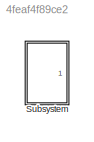
MODEL slx_4feaf4f89ce2
KIND model
CONFIG AbsTol = auto
CONFIG EnableMultiTasking = off
CONFIG FixedStep = auto
CONFIG MaxStep = auto
CONFIG MinStep = auto
CONFIG RelTol = 1e-3
CONFIG SampleTimeConstraint = Unconstrained
CONFIG Solver = VariableStepAuto
CONFIG SolverName = VariableStepAuto
CONFIG StartTime = 0.0
CONFIG StopTime = 50.0
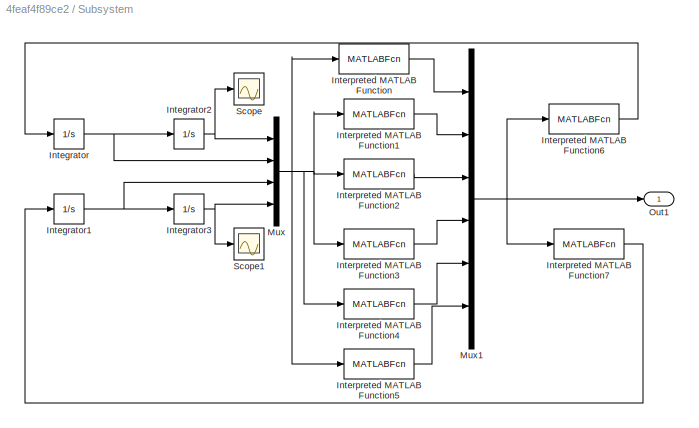
BLOCK [SubSystem] Subsystem
  Ports = [0, 1]
  RequestExecContextInheritance = off
BLOCK [Integrator] Subsystem/Integrator
  InitialCondition = vr
  Ports = [1, 1]
BLOCK [Integrator] Subsystem/Integrator1
  InitialCondition = vth
  Ports = [1, 1]
BLOCK [Integrator] Subsystem/Integrator2
  InitialCondition = r
  Ports = [1, 1]
BLOCK [Integrator] Subsystem/Integrator3
  InitialCondition = th*(pi/180)
  Ports = [1, 1]
BLOCK [MATLABFcn] Subsystem/Interpreted MATLAB Function
  MATLABFcn = (m1+m2+(M/2))*u(1)
  OutputDimensions = 1
  Ports = [1, 1]
BLOCK [MATLABFcn] Subsystem/Interpreted MATLAB Function1
  MATLABFcn = -(m1+m2+(M/2))*Rd
  OutputDimensions = 1
  Ports = [1, 1]
BLOCK [MATLABFcn] Subsystem/Interpreted MATLAB Function2
  MATLABFcn = (m1*u(1))+(g*(m1*cos(u(4))-m2))
  OutputDimensions = 1
  Ports = [1, 1]
BLOCK [MATLABFcn] Subsystem/Interpreted MATLAB Function3
  MATLABFcn = -(m1+m2+(M/2))*Rd
  OutputDimensions = 1
  Ports = [1, 1]
BLOCK [MATLABFcn] Subsystem/Interpreted MATLAB Function4
  MATLABFcn = (((m1+m2+(M/2))*Rd^2)+(m1*u(1)^2))
  OutputDimensions = 1
  Ports = [1, 1]
BLOCK [MATLABFcn] Subsystem/Interpreted MATLAB Function5
  MATLABFcn = (g*Rd*(m2-(m1*cos(u(4)))) - (m1*r*((2*u(1)*th)+(g*sin(u(4))))))
  OutputDimensions = 1
  Ports = [1, 1]
BLOCK [MATLABFcn] Subsystem/Interpreted MATLAB Function6
  MATLABFcn = ((u(3)*u(5))-(u(2)*u(6)))/((u(1)*u(5))-(u(2)*u(4)))
  OutputDimensions = 1
  Ports = [1, 1]
BLOCK [MATLABFcn] Subsystem/Interpreted MATLAB Function7
  MATLABFcn = ((u(1)*u(6))-(u(3)*u(4)))/((u(1)*u(5))-(u(2)*u(4)))
  OutputDimensions = 1
  Ports = [1, 1]
BLOCK [Mux] Subsystem/Mux
  DisplayOption = bar
  Ports = [4, 1]
BLOCK [Mux] Subsystem/Mux1
  DisplayOption = bar
  Inputs = 6
  Ports = [6, 1]
BLOCK [Outport] Subsystem/Out1
  IconDisplay = Port number
BLOCK [Scope] Subsystem/Scope
  Floating = off
  NumInputPorts = 1
  Ports = [1]
  ScopeSpecificationString = Simulink.scopes.TimeScopeBlockCfg('CurrentConfiguration', extmgr.ConfigurationSet(extmgr.Configuration('Core','General UI',true),extmgr.Configuration('Core','Source UI',true),extmgr.Configuration('Sources','WiredSimulink',true),extmgr.Configuration('Visuals','Time Domain',true,'SerializedDisplays',{struct('MinYLimReal','-70.17819','MaxYLimReal','10.0198','YLabelReal','','MinYLimMag','0.00000','Max...<+1335ch>
BLOCK [Scope] Subsystem/Scope1
  Floating = off
  NumInputPorts = 1
  Ports = [1]
  ScopeSpecificationString = Simulink.scopes.TimeScopeBlockCfg('CurrentConfiguration', extmgr.ConfigurationSet(extmgr.Configuration('Core','General UI',true),extmgr.Configuration('Core','Source UI',true),extmgr.Configuration('Sources','WiredSimulink',true,'DataLoggingVariableName','ScopeData1'),extmgr.Configuration('Visuals','Time Domain',true,'SerializedDisplays',{struct('MinYLimReal','-2494.46498','MaxYLimReal','278.9081','...<+1417ch>
NET Subsystem/Integrator1:1 -> Subsystem/Integrator3:1, Subsystem/Mux:3
NET Subsystem/Integrator2:1 -> Subsystem/Mux:1, Subsystem/Scope:1
NET Subsystem/Integrator3:1 -> Subsystem/Mux:4, Subsystem/Scope1:1
NET Subsystem/Integrator:1 -> Subsystem/Integrator2:1, Subsystem/Mux:2
LINE Subsystem/Interpreted MATLAB Function1:1 -> Subsystem/Mux1:2
LINE Subsystem/Interpreted MATLAB Function2:1 -> Subsystem/Mux1:3
LINE Subsystem/Interpreted MATLAB Function3:1 -> Subsystem/Mux1:4
LINE Subsystem/Interpreted MATLAB Function4:1 -> Subsystem/Mux1:5
LINE Subsystem/Interpreted MATLAB Function5:1 -> Subsystem/Mux1:6
LINE Subsystem/Interpreted MATLAB Function6:1 -> Subsystem/Integrator:1
LINE Subsystem/Interpreted MATLAB Function7:1 -> Subsystem/Integrator1:1
LINE Subsystem/Interpreted MATLAB Function:1 -> Subsystem/Mux1:1
NET Subsystem/Mux1:1 -> Subsystem/Interpreted MATLAB Function6:1, Subsystem/Interpreted MATLAB Function7:1, Subsystem/Out1:1
NET Subsystem/Mux:1 -> Subsystem/Interpreted MATLAB Function1:1, Subsystem/Interpreted MATLAB Function2:1, Subsystem/Interpreted MATLAB Function3:1, Subsystem/Interpreted MATLAB Function4:1, Subsystem/Interpreted MATLAB Function5:1, Subsystem/Interpreted MATLAB Function:1
note: NET lines group one-source signal fan-out (src -> all destinations, sorted); 1:1 wires keep LINE
